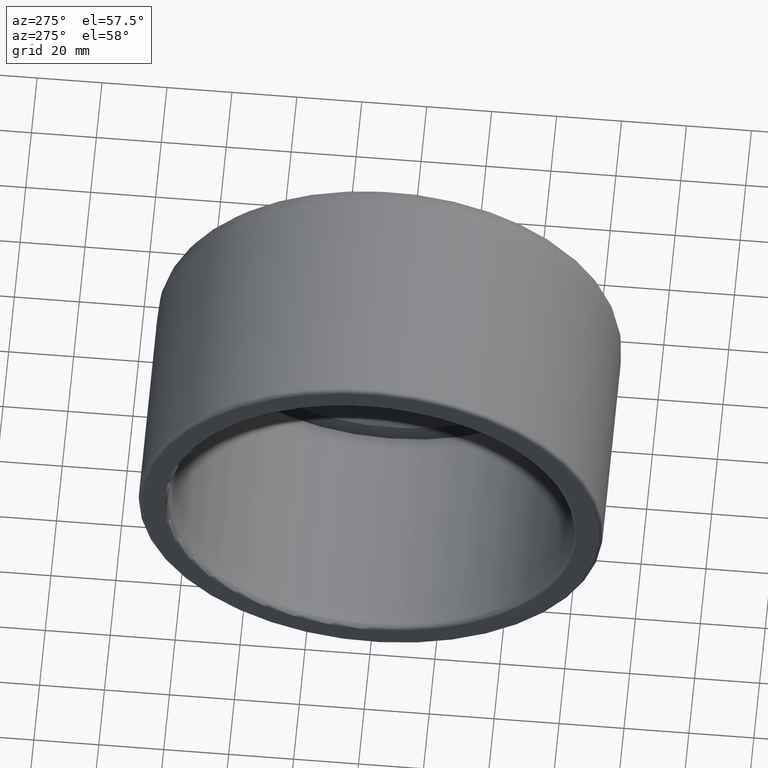
[diagram: clean part render]
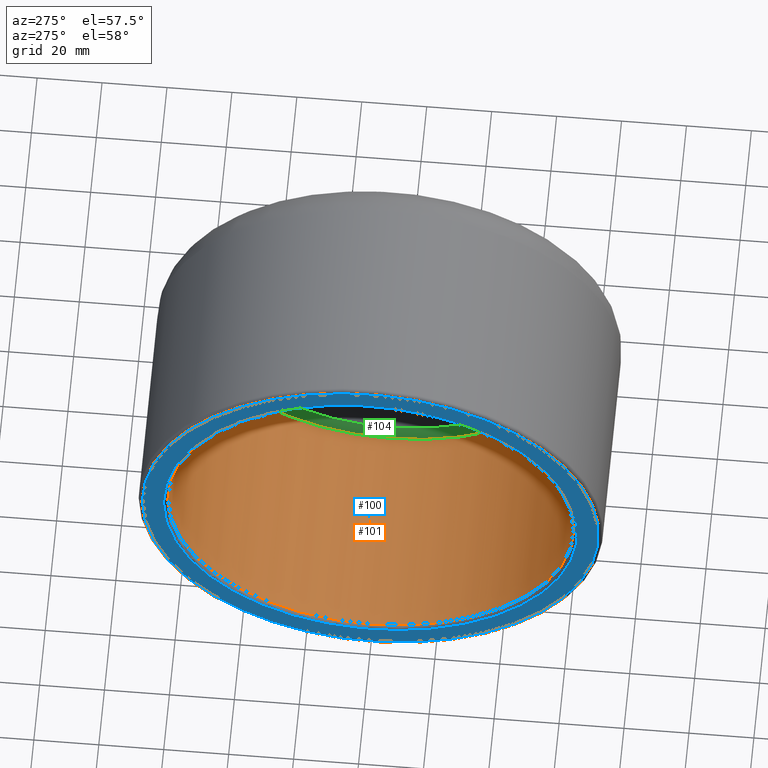
[diagram: same view with three faces highlighted in distinct colors, each labeled with its STEP entity id]
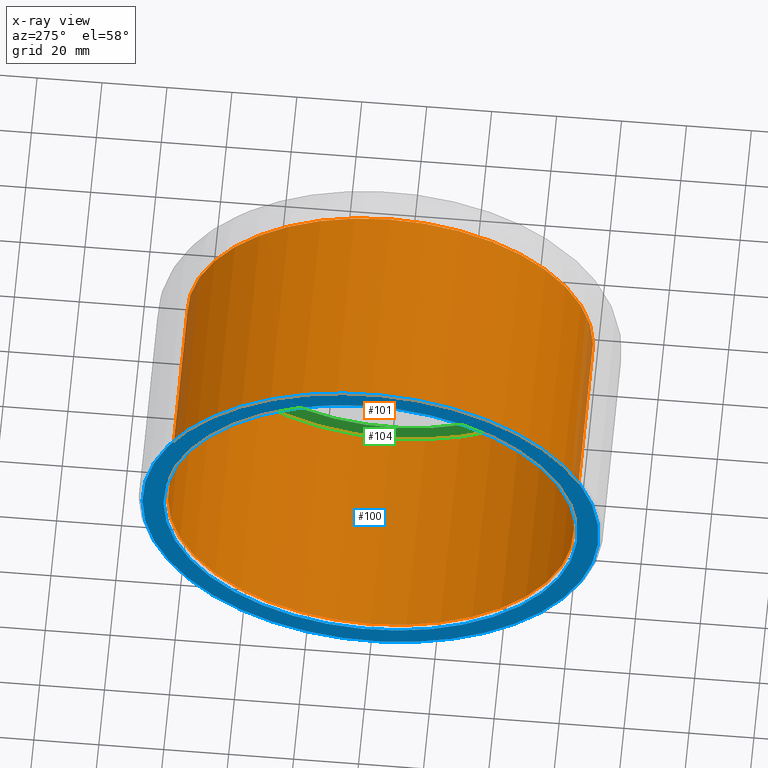
[diagram: x-ray of the same camera — body ghosted, the three highlighted faces saturated]
A machine part, auxiliary view with three faces highlighted in distinct colors.
The next image is the same camera in x-ray (body ghosted, the three faces saturated) — at least one of them is partly hidden behind the body in this view.
Their STEP definitions:

[orange] entity #101 — the highlighted cylindrical surface (bore or boss wall) has radius 62.5 mm, axis along (1, 0, 0).
#20=CYLINDRICAL_SURFACE('',#118,62.5);
#25=FACE_BOUND('',#47,.T.);
#33=FACE_OUTER_BOUND('',#46,.T.);
#46=EDGE_LOOP('',(#86));
#47=EDGE_LOOP('',(#87));
#56=CIRCLE('',#114,62.5);
#59=CIRCLE('',#119,62.5);
#64=VERTEX_POINT('',#171);
#67=VERTEX_POINT('',#179);
#72=EDGE_CURVE('',#64,#64,#56,.T.);
#75=EDGE_CURVE('',#67,#67,#59,.T.);
#86=ORIENTED_EDGE('',*,*,#75,.T.);
#87=ORIENTED_EDGE('',*,*,#72,.F.);
#101=ADVANCED_FACE('',(#33,#25),#20,.F.);
#114=AXIS2_PLACEMENT_3D('',#172,#140,#141);
#118=AXIS2_PLACEMENT_3D('',#178,#148,#149);
#119=AXIS2_PLACEMENT_3D('',#180,#150,#151);
#140=DIRECTION('center_axis',(1.,9.97177066188586E-17,0.));
#141=DIRECTION('ref_axis',(9.76996261670138E-17,-1.,1.83697019872103E-16));
#148=DIRECTION('center_axis',(1.,9.97177066188586E-17,0.));
#149=DIRECTION('ref_axis',(-1.24220758000018E-16,1.,0.));
#150=DIRECTION('center_axis',(1.,9.97177066188586E-17,0.));
#151=DIRECTION('ref_axis',(0.,0.,-1.));
#171=CARTESIAN_POINT('',(-96.75,62.5,-3.82702124733548E-15));
#172=CARTESIAN_POINT('Origin',(-96.75,-9.64768811537457E-15,0.));
#178=CARTESIAN_POINT('Origin',(-63.5,-6.33207437029752E-15,0.));
#179=CARTESIAN_POINT('',(-29.,62.5,0.));
#180=CARTESIAN_POINT('Origin',(-29.,-2.8918134919469E-15,0.));

[blue] entity #100 — the highlighted planar face has unit normal (-1, -0, 0).
#15=PLANE('',#116);
#24=FACE_BOUND('',#45,.T.);
#32=FACE_OUTER_BOUND('',#44,.T.);
#44=EDGE_LOOP('',(#84));
#45=EDGE_LOOP('',(#85));
#57=CIRCLE('',#115,63.75);
#58=CIRCLE('',#117,70.25);
#65=VERTEX_POINT('',#173);
#66=VERTEX_POINT('',#176);
#73=EDGE_CURVE('',#65,#65,#57,.T.);
#74=EDGE_CURVE('',#66,#66,#58,.T.);
#84=ORIENTED_EDGE('',*,*,#74,.F.);
#85=ORIENTED_EDGE('',*,*,#73,.F.);
#100=ADVANCED_FACE('',(#32,#24),#15,.T.);
#115=AXIS2_PLACEMENT_3D('',#174,#142,#143);
#116=AXIS2_PLACEMENT_3D('',#175,#144,#145);
#117=AXIS2_PLACEMENT_3D('',#177,#146,#147);
#142=DIRECTION('center_axis',(-1.,-9.97177066188586E-17,0.));
#143=DIRECTION('ref_axis',(9.97177066188586E-17,-1.,1.83697019872103E-16));
#144=DIRECTION('center_axis',(-1.,-9.97177066188586E-17,0.));
#145=DIRECTION('ref_axis',(0.,0.,1.));
#146=DIRECTION('center_axis',(1.,9.97177066188586E-17,0.));
#147=DIRECTION('ref_axis',(9.97177066188586E-17,-1.,1.83697019872103E-16));
#173=CARTESIAN_POINT('',(-98.,63.75,-1.95178083614109E-14));
#174=CARTESIAN_POINT('Origin',(-98.,-9.77233524864815E-15,0.));
#175=CARTESIAN_POINT('Origin',(-98.,71.5,0.));
#176=CARTESIAN_POINT('',(-98.,70.25,-4.30157188200508E-15));
#177=CARTESIAN_POINT('Origin',(-98.,-9.77233524864815E-15,0.));

[green] entity #104 — the highlighted planar face has unit normal (-1, -0, 0).
#16=PLANE('',#123);
#27=FACE_BOUND('',#52,.T.);
#36=FACE_OUTER_BOUND('',#51,.T.);
#51=EDGE_LOOP('',(#91));
#52=EDGE_LOOP('',(#92));
#59=CIRCLE('',#119,62.5);
#60=CIRCLE('',#122,56.25);
#67=VERTEX_POINT('',#179);
#68=VERTEX_POINT('',#183);
#75=EDGE_CURVE('',#67,#67,#59,.T.);
#76=EDGE_CURVE('',#68,#68,#60,.T.);
#91=ORIENTED_EDGE('',*,*,#75,.F.);
#92=ORIENTED_EDGE('',*,*,#76,.T.);
#104=ADVANCED_FACE('',(#36,#27),#16,.T.);
#119=AXIS2_PLACEMENT_3D('',#180,#150,#151);
#122=AXIS2_PLACEMENT_3D('',#184,#156,#157);
#123=AXIS2_PLACEMENT_3D('',#185,#158,#159);
#150=DIRECTION('center_axis',(1.,9.97177066188586E-17,0.));
#151=DIRECTION('ref_axis',(0.,0.,-1.));
#156=DIRECTION('center_axis',(1.,9.97177066188586E-17,0.));
#157=DIRECTION('ref_axis',(0.,0.,-1.));
#158=DIRECTION('center_axis',(-1.,-9.97177066188586E-17,0.));
#159=DIRECTION('ref_axis',(0.,0.,1.));
#179=CARTESIAN_POINT('',(-29.,62.5,0.));
#180=CARTESIAN_POINT('Origin',(-29.,-2.8918134919469E-15,0.));
#183=CARTESIAN_POINT('',(-29.,56.25,0.));
#184=CARTESIAN_POINT('Origin',(-29.,-2.8918134919469E-15,0.));
#185=CARTESIAN_POINT('Origin',(-29.,62.5,0.));